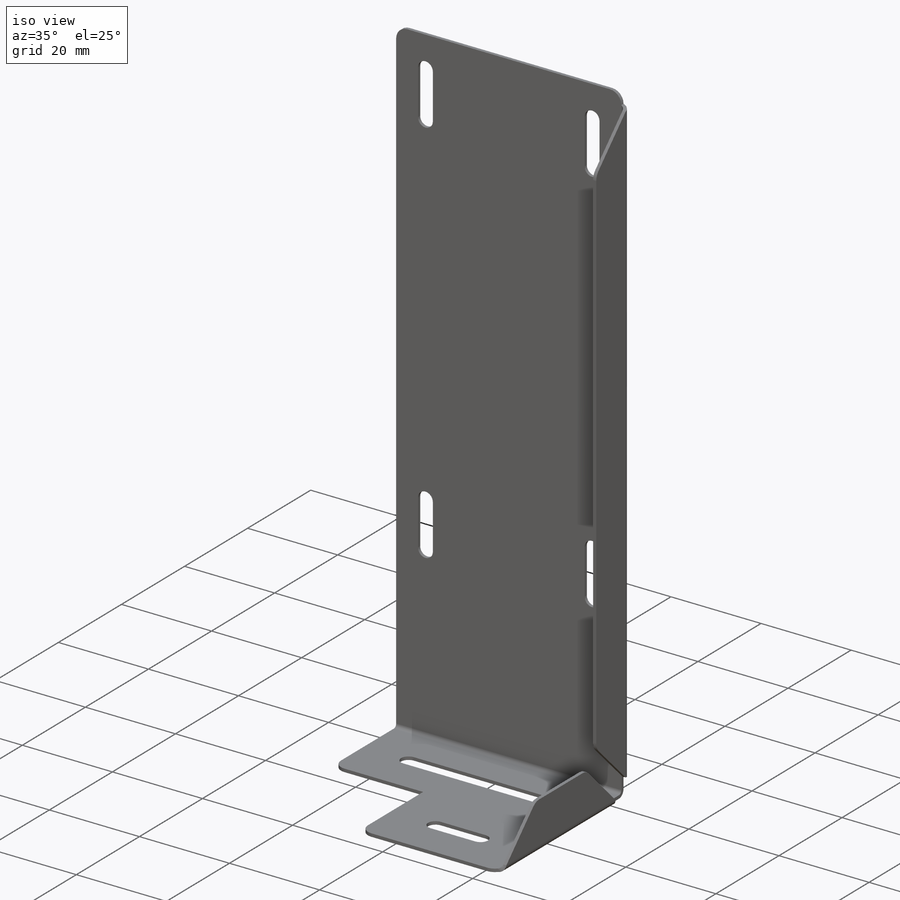
[diagram: iso view]
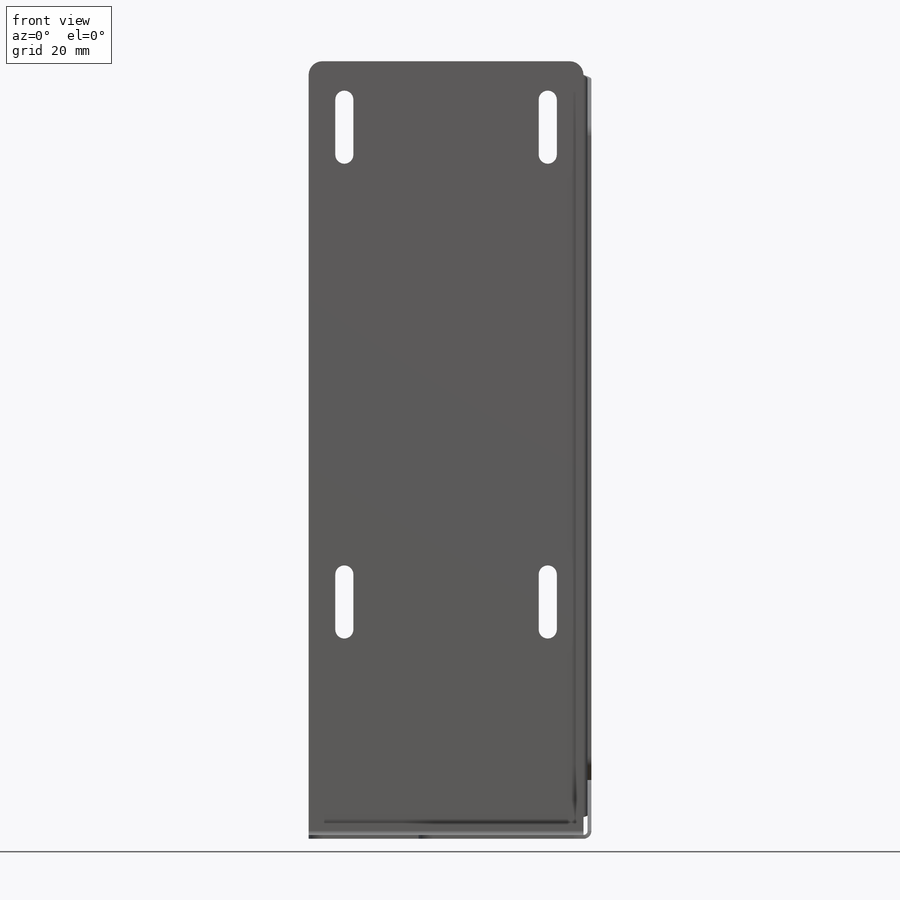
[diagram: front view]
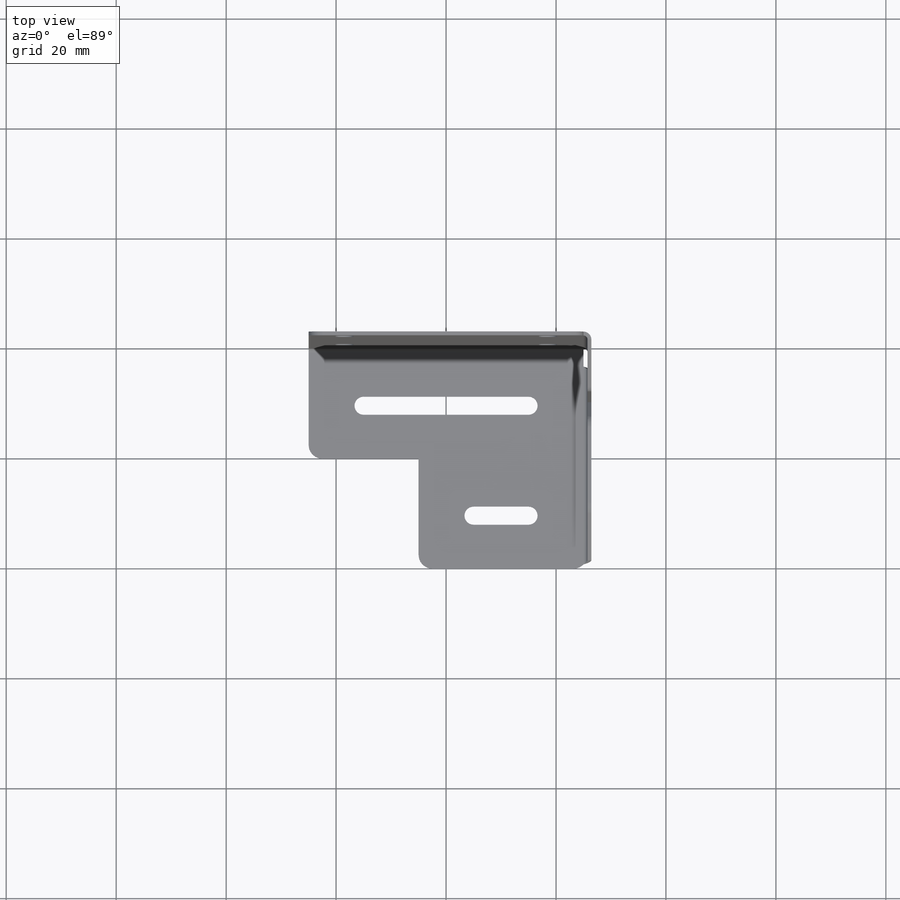
[diagram: top view]
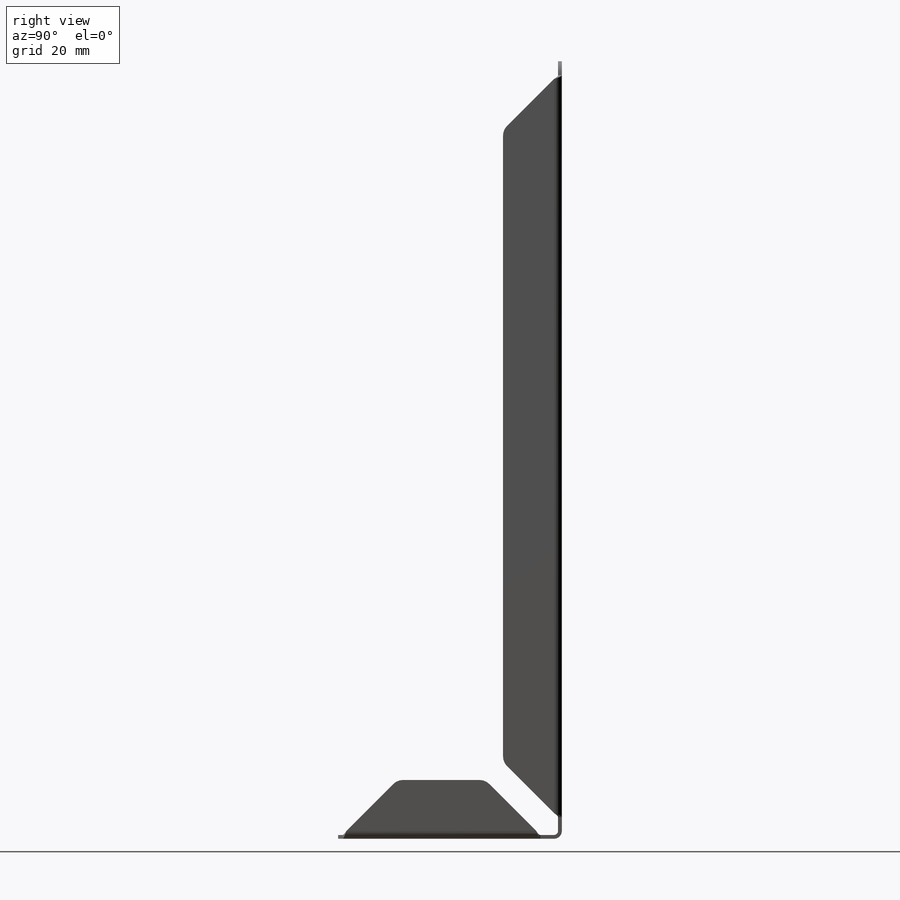
[diagram: right view]
SOLIDWORKS PART (.sldprt)
format: sldprt  version: not decoded by parser v0  size: 339,456 bytes
history: native  units: mm
features: sketch x8, sheet_metal_op x5, cut_extrude x2, material x1 + 3 further entries (+11 scaffold rows collapsed; 1 parser-record rows omitted)
feature tree (31):
  scaffold x11  (default folders/planes/origin — collapsed)
  material  "Material <not specified>"
  sketch  "Sketch1"  dims[D1=50.0mm D2=140.0mm]
  sheet_metal_op  "Sheet-Metal1"
  sheet_metal_op  "Base-Flange1"
  sketch  "Sketch6"  dims[c1.D1=40.0mm c1.D2=20.0mm c1.D3=20.0mm c2.D1=40.0mm c3.D1=0.7366mm c3.D4=90.0deg c3.D5=1.0 c3.D8=0.35mm c3.D9=0.35mm c4.D1=0.7366mm c4.D2=500.0mm c4.D3=0.0mm c4.D6=10.0mm c4.D7=40.0mm]
  sketch  "Sketch9"  dims[c1.D1=35.0mm c1.D2=3.3mm c1.D3=25.0mm c2.D1=3.3mm c2.D2=30.0mm c2.D3=3.3mm c2.D4=20.0mm c2.D5=~9.175389mm]
  cut_extrude  "Cut-Extrude1"  [1 undecoded]
  sketch  "Sketch10"  dims[c1.D1=86.36mm c1.D2=7.5mm c1.D3=~43.521184mm c2.D1=3.3mm c2.D2=86.36mm c2.D3=7.0mm c2.D4=37.0mm c2.D5=10.0mm]
  cut_extrude  "Cut-Extrude2"  [1 undecoded]
  sheet_metal_op  "Edge-Flange2"
  sketch  "Sketch15"  dims[c1.D1=2.5mm c1.D2=10.0mm c2.D2=45.0deg c2.D3=36.7634mm c2.D1=36.0mm c3.D3=~7.165203mm c4.D3=45.0deg c4.D4=2.5mm c4.D5=10.0mm]
  sketch  "Sketch16"  dims[c1.D1=2.5mm c1.D2=10.0mm c2.D2=45.0deg c2.D3=2.5mm c2.D4=~7.071068mm c3.D4=90.0deg c4.D4=~7.071068mm c5.D4=45.0deg c5.D5=10.0mm]
  sheet_metal_op  "EdgeBend2"
  sheet_metal_op  "EdgeBend3"
  "Flat-Pattern1"
  sketch  "Bend-Lines1"
  sketch  "Bounding-Box1"
  "Flatten-<EdgeBend2>1"
  "Flatten-<EdgeBend3>1"
  parser-record x1  (decoder bookkeeping rows leaked as tree rows — omitted from the tree; the rows remain in map.json)
decode coverage: 6 of 15 modeling features carry decoded parameters; 3 rows unclassified (native names shown)
note: ~ marks probable driven/reference dimensions
note: 2 parameter values undecoded
note: suppression state not decoded; provenance and decode notes live in map.json
